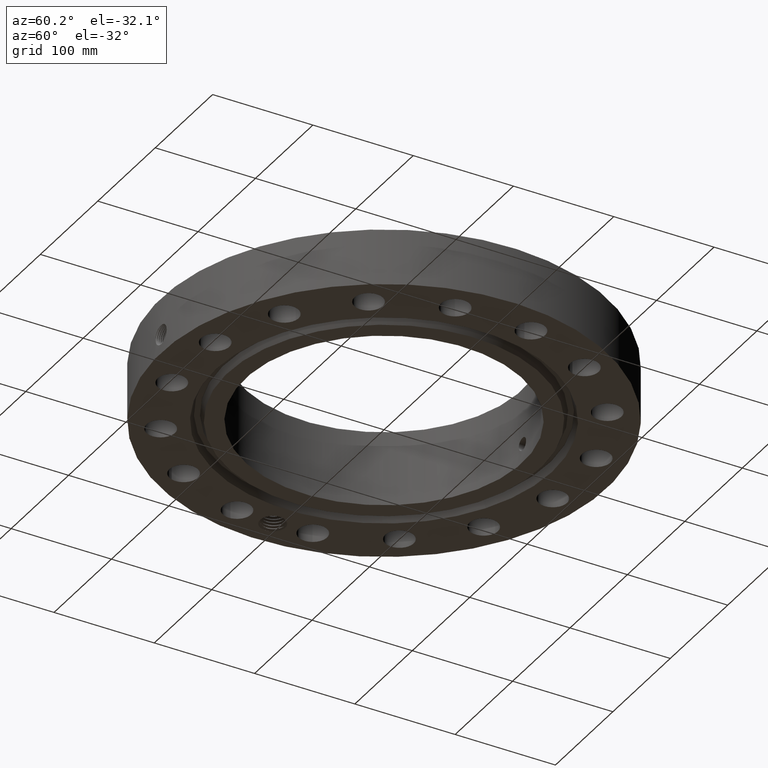
[diagram: clean part render]
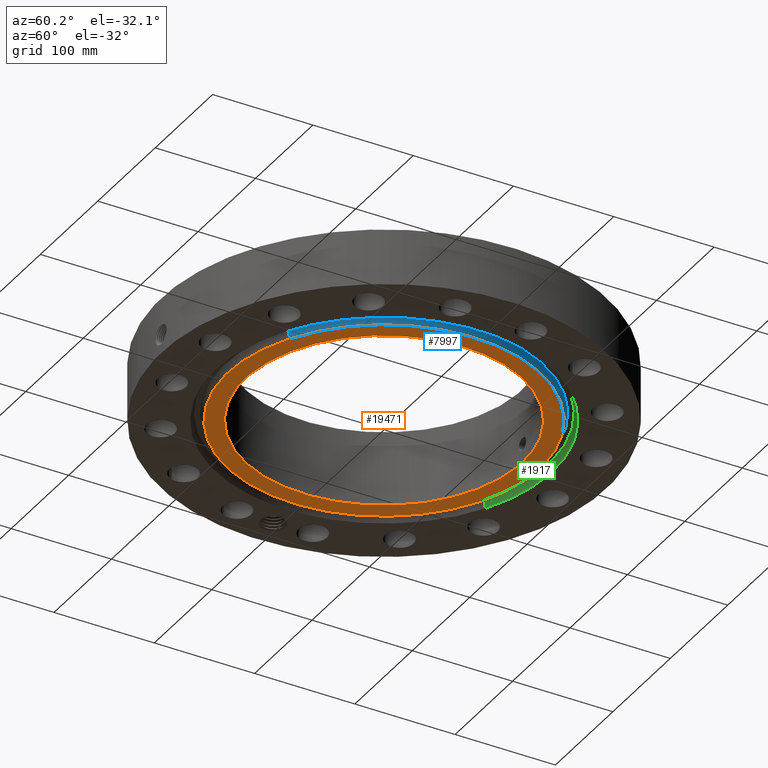
[diagram: same view with three faces highlighted in distinct colors, each labeled with its STEP entity id]
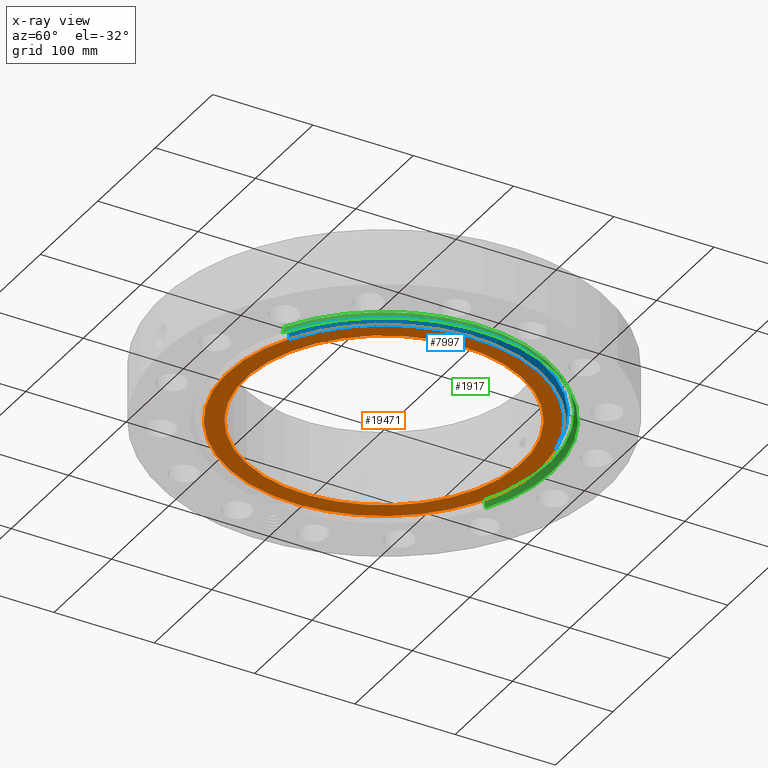
[diagram: x-ray of the same camera — body ghosted, the three highlighted faces saturated]
A machine part, auxiliary view with three faces highlighted in distinct colors.
The next image is the same camera in x-ray (body ghosted, the three faces saturated) — at least one of them is partly hidden behind the body in this view.
Their STEP definitions:

[orange] entity #19471 — the highlighted planar face has unit normal (0, 0, -1).
#165=AXIS2_PLACEMENT_3D('Plane Axis2P3D',#162,#163,#164) ;
#7976=AXIS2_PLACEMENT_3D('Circle Axis2P3D',#7974,#7975,$) ;
#7988=AXIS2_PLACEMENT_3D('Circle Axis2P3D',#7986,#7987,$) ;
#8307=AXIS2_PLACEMENT_3D('Circle Axis2P3D',#8305,#8306,$) ;
#8368=AXIS2_PLACEMENT_3D('Circle Axis2P3D',#8366,#8367,$) ;
#162=CARTESIAN_POINT('Axis2P3D Location',(0.,5.44000000002,0.)) ;
#7964=CARTESIAN_POINT('Vertex',(2.94391251981,-5.38879572131,1.92322098754E-016)) ;
#7971=CARTESIAN_POINT('Vertex',(-2.94391251981,5.38879572131,-1.48612530855E-016)) ;
#7974=CARTESIAN_POINT('Axis2P3D Location',(0.,0.,0.)) ;
#7986=CARTESIAN_POINT('Axis2P3D Location',(0.,0.,0.)) ;
#8302=CARTESIAN_POINT('Vertex',(2.60807493002,4.7740491367,-5.03534222192E-015)) ;
#8305=CARTESIAN_POINT('Axis2P3D Location',(0.,7.99652833788E-018,-5.03534222192E-015)) ;
#8309=CARTESIAN_POINT('Vertex',(-2.60807493002,-4.7740491367,-5.03534222192E-015)) ;
#8366=CARTESIAN_POINT('Axis2P3D Location',(0.,7.99652833788E-018,-5.03534222192E-015)) ;
#163=DIRECTION('Axis2P3D Direction',(0.,0.,-0.0393700787402)) ;
#164=DIRECTION('Axis2P3D XDirection',(0.0393700787402,0.,0.)) ;
#7975=DIRECTION('Axis2P3D Direction',(0.,0.,0.0393700787402)) ;
#7987=DIRECTION('Axis2P3D Direction',(0.,0.,0.0393700787402)) ;
#8306=DIRECTION('Axis2P3D Direction',(0.,0.,-0.0393700787402)) ;
#8367=DIRECTION('Axis2P3D Direction',(0.,0.,-0.0393700787402)) ;
#19464=ORIENTED_EDGE('',*,*,#7990,.T.) ;
#19465=ORIENTED_EDGE('',*,*,#7978,.T.) ;
#19468=ORIENTED_EDGE('',*,*,#8311,.F.) ;
#19469=ORIENTED_EDGE('',*,*,#8370,.F.) ;
#19470=FACE_BOUND('',#19467,.T.) ;
#19471=ADVANCED_FACE('PartBody',(#19466,#19470),#166,.T.) ;
#7977=CIRCLE('generated circle',#7976,6.14050000002) ;
#7989=CIRCLE('generated circle',#7988,6.14050000002) ;
#8308=CIRCLE('generated circle',#8307,5.44000000002) ;
#8369=CIRCLE('generated circle',#8368,5.44000000002) ;
#7978=EDGE_CURVE('',#7965,#7972,#7977,.F.) ;
#7990=EDGE_CURVE('',#7972,#7965,#7989,.F.) ;
#8311=EDGE_CURVE('',#8303,#8310,#8308,.T.) ;
#8370=EDGE_CURVE('',#8310,#8303,#8369,.T.) ;
#19463=EDGE_LOOP('',(#19464,#19465)) ;
#19467=EDGE_LOOP('',(#19468,#19469)) ;
#19466=FACE_OUTER_BOUND('',#19463,.T.) ;
#166=PLANE('',#165) ;
#7965=VERTEX_POINT('',#7964) ;
#7972=VERTEX_POINT('',#7971) ;
#8303=VERTEX_POINT('',#8302) ;
#8310=VERTEX_POINT('',#8309) ;

[blue] entity #7997 — the highlighted conical surface has half-angle 23 deg.
#4536=AXIS2_PLACEMENT_3D('Circle Axis2P3D',#4534,#4535,$) ;
#7958=AXIS2_PLACEMENT_3D('Cone Axis2P3D',#7955,#7956,#7957) ;
#7988=AXIS2_PLACEMENT_3D('Circle Axis2P3D',#7986,#7987,$) ;
#4512=CARTESIAN_POINT('Vertex',(-3.0037656434,5.49835612915,0.294112664984)) ;
#4519=CARTESIAN_POINT('Vertex',(3.0037656434,-5.49835612915,0.294112664984)) ;
#4534=CARTESIAN_POINT('Axis2P3D Location',(0.,0.,0.294112664984)) ;
#7955=CARTESIAN_POINT('Axis2P3D Location',(0.,0.,-0.0600000000002)) ;
#7960=CARTESIAN_POINT('Line Origine',(2.97383908161,-5.44357592523,0.147056332492)) ;
#7964=CARTESIAN_POINT('Vertex',(2.94391251981,-5.38879572131,1.92322098754E-016)) ;
#7967=CARTESIAN_POINT('Line Origine',(-2.97383908161,5.44357592523,0.147056332492)) ;
#7971=CARTESIAN_POINT('Vertex',(-2.94391251981,5.38879572131,-1.48612530855E-016)) ;
#7986=CARTESIAN_POINT('Axis2P3D Location',(0.,0.,0.)) ;
#4535=DIRECTION('Axis2P3D Direction',(0.,0.,0.0393700787402)) ;
#7956=DIRECTION('Axis2P3D Direction',(0.,0.,0.0393700787402)) ;
#7957=DIRECTION('Axis2P3D XDirection',(0.0188750212049,-0.0345504945626,0.)) ;
#7961=DIRECTION('Vector Direction',(0.00737505833565,-0.0134999537303,0.0362403485611)) ;
#7968=DIRECTION('Vector Direction',(-0.00737505833565,0.0134999537303,0.0362403485611)) ;
#7987=DIRECTION('Axis2P3D Direction',(0.,0.,0.0393700787402)) ;
#7962=VECTOR('Line Direction',#7961,0.0393700787402) ;
#7969=VECTOR('Line Direction',#7968,0.0393700787402) ;
#7992=ORIENTED_EDGE('',*,*,#7973,.F.) ;
#7993=ORIENTED_EDGE('',*,*,#4538,.F.) ;
#7994=ORIENTED_EDGE('',*,*,#7966,.T.) ;
#7995=ORIENTED_EDGE('',*,*,#7990,.F.) ;
#7997=ADVANCED_FACE('PartBody',(#7996),#7959,.T.) ;
#4537=CIRCLE('generated circle',#4536,6.26534341944) ;
#7989=CIRCLE('generated circle',#7988,6.14050000002) ;
#7959=CONICAL_SURFACE('Cone',#7958,6.11503151105,0.401425727959) ;
#4538=EDGE_CURVE('',#4520,#4513,#4537,.T.) ;
#7966=EDGE_CURVE('',#4520,#7965,#7963,.F.) ;
#7973=EDGE_CURVE('',#4513,#7972,#7970,.F.) ;
#7990=EDGE_CURVE('',#7972,#7965,#7989,.F.) ;
#7991=EDGE_LOOP('',(#7992,#7993,#7994,#7995)) ;
#7996=FACE_OUTER_BOUND('',#7991,.T.) ;
#7963=LINE('Line',#7960,#7962) ;
#7970=LINE('Line',#7967,#7969) ;
#4513=VERTEX_POINT('',#4512) ;
#4520=VERTEX_POINT('',#4519) ;
#7965=VERTEX_POINT('',#7964) ;
#7972=VERTEX_POINT('',#7971) ;

[green] entity #1917 — the highlighted conical surface has half-angle 23 deg.
#523=AXIS2_PLACEMENT_3D('Circle Axis2P3D',#521,#522,$) ;
#1878=AXIS2_PLACEMENT_3D('Cone Axis2P3D',#1875,#1876,#1877) ;
#1908=AXIS2_PLACEMENT_3D('Circle Axis2P3D',#1906,#1907,$) ;
#516=CARTESIAN_POINT('Vertex',(3.16876309742,-5.80038194284,0.)) ;
#518=CARTESIAN_POINT('Vertex',(-3.16876309742,5.80038194284,0.)) ;
#521=CARTESIAN_POINT('Axis2P3D Location',(8.39223703654E-016,1.1189649382E-015,0.)) ;
#1875=CARTESIAN_POINT('Axis2P3D Location',(0.,0.,0.294112664984)) ;
#1880=CARTESIAN_POINT('Line Origine',(-3.13883653562,5.74560173892,0.147056332492)) ;
#1884=CARTESIAN_POINT('Vertex',(-3.10890997382,5.69082153499,0.294112664984)) ;
#1891=CARTESIAN_POINT('Vertex',(3.10890997382,-5.69082153499,0.294112664984)) ;
#1894=CARTESIAN_POINT('Line Origine',(3.13883653562,-5.74560173892,0.147056332492)) ;
#1906=CARTESIAN_POINT('Axis2P3D Location',(0.,0.,0.294112664984)) ;
#522=DIRECTION('Axis2P3D Direction',(0.,0.,-0.0393700787402)) ;
#1876=DIRECTION('Axis2P3D Direction',(-0.,-0.,-0.0393700787402)) ;
#1877=DIRECTION('Axis2P3D XDirection',(-0.0188750212049,0.0345504945626,0.)) ;
#1881=DIRECTION('Vector Direction',(-0.00737505833565,0.0134999537303,-0.0362403485611)) ;
#1895=DIRECTION('Vector Direction',(0.00737505833565,-0.0134999537303,-0.0362403485611)) ;
#1907=DIRECTION('Axis2P3D Direction',(0.,0.,-0.0393700787402)) ;
#1882=VECTOR('Line Direction',#1881,0.0393700787402) ;
#1896=VECTOR('Line Direction',#1895,0.0393700787402) ;
#1912=ORIENTED_EDGE('',*,*,#525,.T.) ;
#1913=ORIENTED_EDGE('',*,*,#1898,.T.) ;
#1914=ORIENTED_EDGE('',*,*,#1910,.T.) ;
#1915=ORIENTED_EDGE('',*,*,#1886,.F.) ;
#1917=ADVANCED_FACE('PartBody',(#1916),#1879,.F.) ;
#524=CIRCLE('generated circle',#523,6.60950000003) ;
#1909=CIRCLE('generated circle',#1908,6.48465658061) ;
#1879=CONICAL_SURFACE('Cone',#1878,6.48465658061,0.401425727959) ;
#525=EDGE_CURVE('',#519,#517,#524,.T.) ;
#1886=EDGE_CURVE('',#519,#1885,#1883,.F.) ;
#1898=EDGE_CURVE('',#517,#1892,#1897,.F.) ;
#1910=EDGE_CURVE('',#1892,#1885,#1909,.F.) ;
#1911=EDGE_LOOP('',(#1912,#1913,#1914,#1915)) ;
#1916=FACE_OUTER_BOUND('',#1911,.T.) ;
#1883=LINE('Line',#1880,#1882) ;
#1897=LINE('Line',#1894,#1896) ;
#517=VERTEX_POINT('',#516) ;
#519=VERTEX_POINT('',#518) ;
#1885=VERTEX_POINT('',#1884) ;
#1892=VERTEX_POINT('',#1891) ;